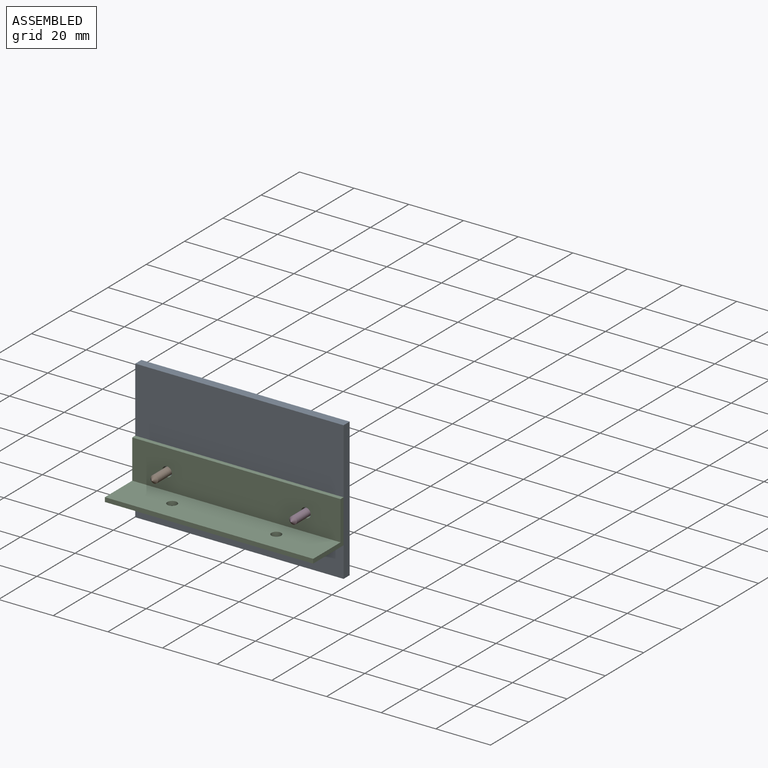
[diagram: assembled view]
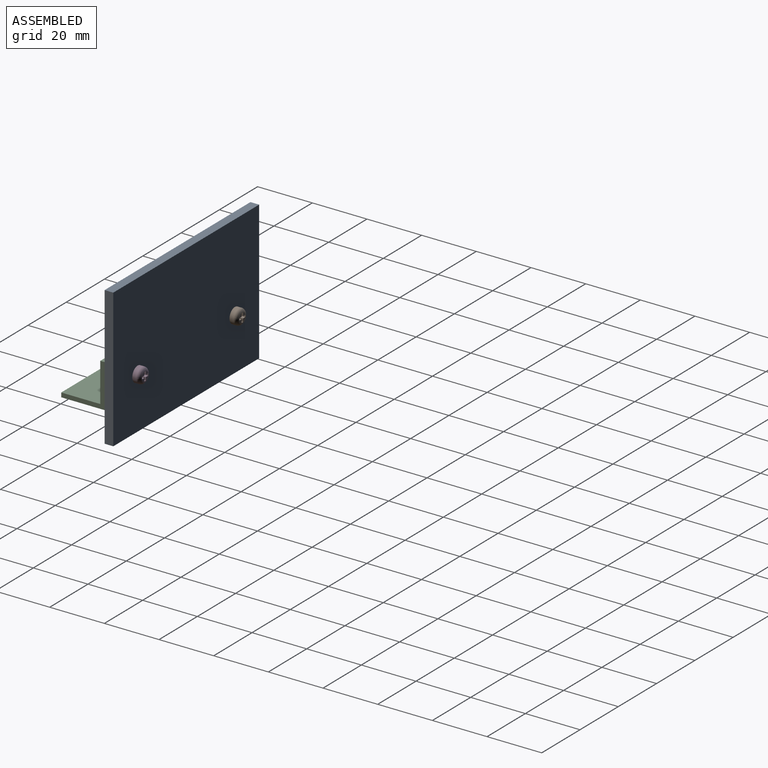
[diagram: assembled view, second angle]
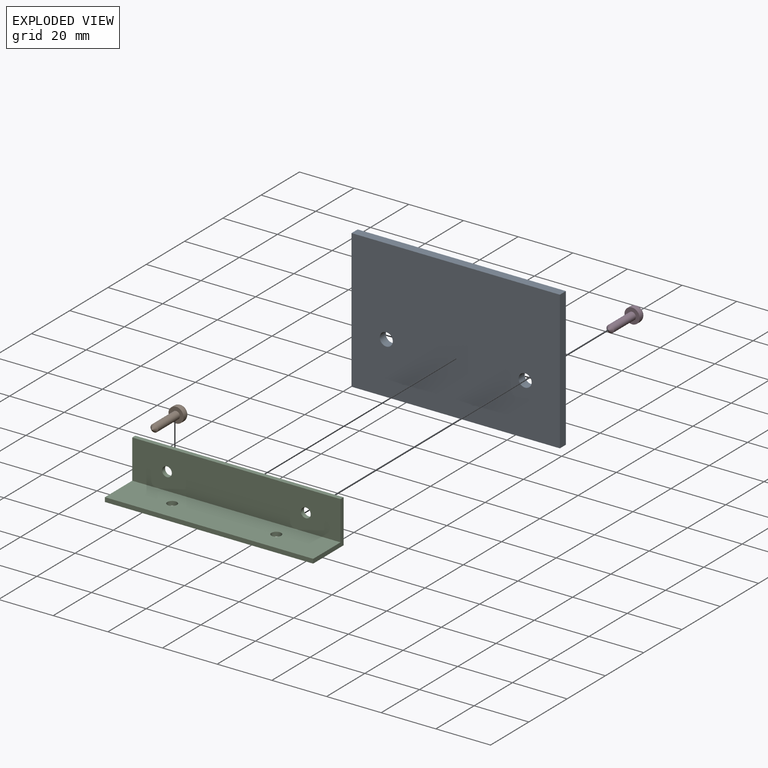
[diagram: exploded view]
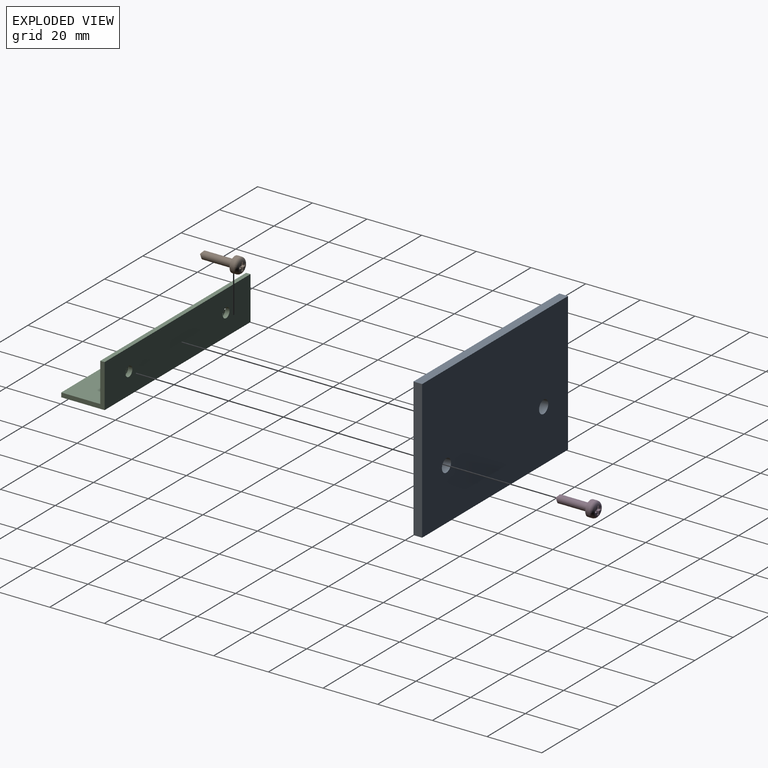
[diagram: exploded view, second angle]
ASSEMBLY  parts=4 mates=4
PART A: 8 faces, bbox 76.2x3.2x50.8 mm
  f0: plane 50.8x3.18mm, normal (-1,0,0), area 161.3mm2, adj f1,f3,f4,f5
  f1: plane 76.2x3.18mm, normal (0,0,-1), area 241.9mm2, adj f0,f2,f4,f5
  f2: plane 50.8x3.18mm, normal (1,0,0), area 161.3mm2, adj f1,f3,f4,f5
  f3: plane 76.2x3.18mm, normal (0,0,1), area 241.9mm2, adj f0,f2,f4,f5
  f4: plane 76.2x50.8mm, normal (0,-1,0), area 3835.3mm2, adj f0,f1,f2,f3,f6,f7
  f5: plane 76.2x50.8mm, normal (0,1,0), area 3835.3mm2, adj f0,f1,f2,f3,f6,f7
  f6: cylinder r=2.38mm len=4.76mm, axis (0,-1,0), area 47.5mm2, adj f4,f5
  f7: cylinder r=2.38mm len=4.76mm, axis (0,-1,0), area 47.5mm2, adj f4,f5
PART B: 27 faces, bbox 6.1x15.6x6.1 mm
  f0: plane 1.06x1.06mm, normal (0,1,0), area 0.8mm2, adj f12,f16,f23,f25
  f1: plane 1.06x1.06mm, normal (0,1,0), area 0.8mm2, adj f5,f15,f24,f25
  f2: plane 1.06x1.06mm, normal (0,1,0), area 0.8mm2, adj f4,f19,f22,f25
  f3: plane 1.06x1.06mm, normal (0,1,0), area 0.8mm2, adj f10,f18,f21,f25
  f4: plane 2.38x1.07mm, normal (-1,0,0), area 2.5mm2, adj f2,f13,f14,f22,f25
  f5: plane 2.38x1.07mm, normal (1,0,0), area 2.5mm2, adj f1,f13,f14,f24,f25
  f6: cylinder r=2.78mm len=5.56mm, axis (0,1,0), area 26.3mm2, adj f7,f25
  f7: plane 5.56x5.56mm, normal (0,-1,0), area 18.2mm2, adj f6,f8
  f8: cylinder r=1.39mm len=11.37mm, axis (0,1,0), area 99.2mm2, adj f7,f26
  f9: plane 0.11x0.11mm, normal (0,-1,0), area 0mm2, adj f26
  f10: plane 2.38x1.07mm, normal (-1,0,0), area 2.5mm2, adj f3,f11,f14,f21,f25
  f11: plane 2.4x0.82mm, normal (0,0,1), area 1.9mm2, adj f10,f12,f14,f25
  f12: plane 2.38x1.07mm, normal (1,0,0), area 2.5mm2, adj f0,f11,f14,f23,f25
  f13: plane 2.48x0.89mm, normal (0,0,-1), area 1.9mm2, adj f4,f5,f14,f25
  f14: plane 3.18x3.18mm, normal (0,1,0), area 4.4mm2, adj f4,f5,f10,f11,f12,f13,f15,f16
  f15: plane 2.38x1.07mm, normal (0,0,-1), area 2.5mm2, adj f1,f14,f17,f24,f25
  f16: plane 2.38x1.07mm, normal (0,0,1), area 2.5mm2, adj f0,f14,f17,f23,f25
  f17: plane 2.48x0.89mm, normal (1,0,0), area 1.9mm2, adj f14,f15,f16,f25
  f18: plane 2.38x1.07mm, normal (0,0,1), area 2.5mm2, adj f3,f14,f20,f21,f25
  f19: plane 2.38x1.07mm, normal (0,0,-1), area 2.5mm2, adj f2,f14,f20,f22,f25
  f20: plane 2.48x0.89mm, normal (-1,0,0), area 1.9mm2, adj f14,f18,f19,f25
  f21: cylinder r=0.13mm len=2.38mm, axis (0,1,0), area 0.5mm2, adj f3,f10,f14,f18
  f22: cylinder r=0.13mm len=2.38mm, axis (0,-1,0), area 0.5mm2, adj f2,f4,f14,f19
  f23: cylinder r=0.13mm len=2.38mm, axis (0,-1,0), area 0.5mm2, adj f0,f12,f14,f16
  f24: cylinder r=0.13mm len=2.38mm, axis (0,1,0), area 0.5mm2, adj f1,f5,f14,f15
  f25: torus R=1.51mm, axis (0,-1,0), area 28.6mm2, adj f0,f1,f2,f3,f4,f5,f6,f10
  f26: cone r=0.06mm half-angle=45deg, axis (0,1,0), area 8.6mm2, adj f8,f9
PART C: 12 faces, bbox 76.2x15.9x15.9 mm
  f0: plane 76.2x14.29mm, normal (0,-1,0), area 1068.7mm2, adj f1,f3,f4,f6,f7,f8
  f1: plane 15.88x15.88mm, normal (-1,0,0), area 47.9mm2, adj f0,f2,f4,f5,f8,f9
  f2: plane 76.2x15.88mm, normal (0,0,-1), area 1189.6mm2, adj f1,f3,f5,f9,f10,f11
  f3: plane 15.88x15.88mm, normal (1,0,0), area 47.9mm2, adj f0,f2,f4,f5,f8,f9
  f4: plane 76.2x1.59mm, normal (0,0,1), area 121mm2, adj f0,f1,f3,f5
  f5: plane 76.2x15.88mm, normal (0,1,0), area 1189.6mm2, adj f1,f2,f3,f4,f6,f7
  f6: cylinder r=1.79mm len=3.57mm, axis (0,-1,0), area 17.8mm2, adj f0,f5
  f7: cylinder r=1.79mm len=3.57mm, axis (0,-1,0), area 17.8mm2, adj f0,f5
  f8: plane 76.2x14.29mm, normal (0,0,1), area 1068.6mm2, adj f0,f1,f3,f9,f10,f11
  f9: plane 76.2x1.59mm, normal (0,-1,0), area 121mm2, adj f1,f2,f3,f8
  f10: cylinder r=1.79mm len=3.58mm, axis (0,0,1), area 17.9mm2, adj f2,f8
  f11: cylinder r=1.79mm len=3.57mm, axis (0,0,1), area 17.8mm2, adj f2,f8
PART D: same geometry as B
PLACE A t=(0,10.33,12.7)mm
PLACE B t=(-25.4,13.31,6.35)mm
PLACE C t=(0,7.95,6.35)mm
PLACE D rot(axis=(0,1,0),90deg) t=(25.4,13.31,6.35)mm
MATE fastened A.f6 <-> B.f6  axis (0,-1,0) through (-25.4,11.92,6.35)mm
MATE cylindrical C.f7 <-> A.f7  axis (0,1,0) through (25.4,8.75,6.35)mm
MATE fastened A.f7 <-> D.f6  axis (0,1,0) through (25.4,11.92,6.35)mm
MATE fastened C.f6 <-> A.f6  axis (0,1,0) through (-25.4,8.75,6.35)mm
